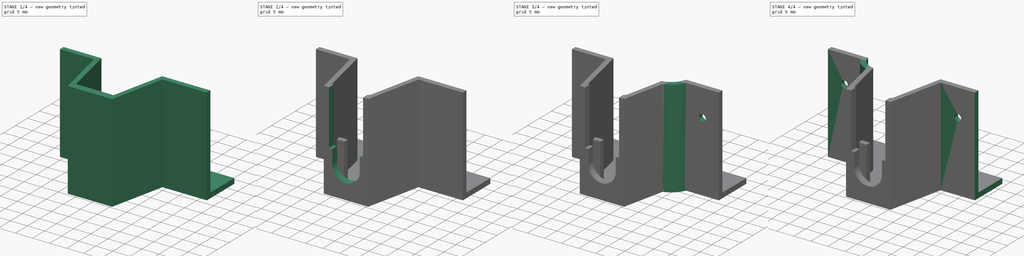
[diagram: build sequence overview — one tinted view per stage of 4, left to right]
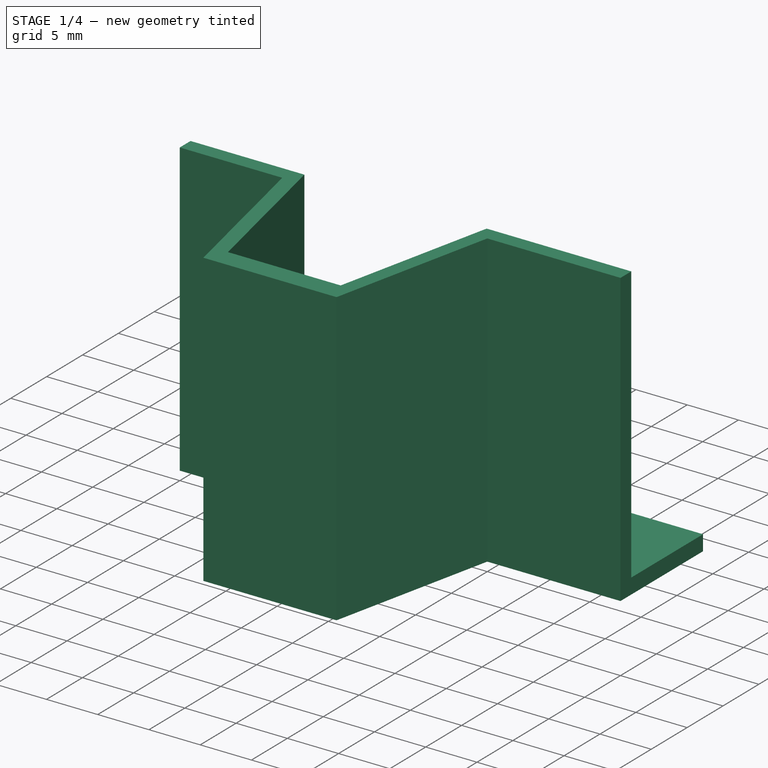
[diagram: stage 1 of 4 — iso view after this stage's code; geometry added in this stage tinted green]
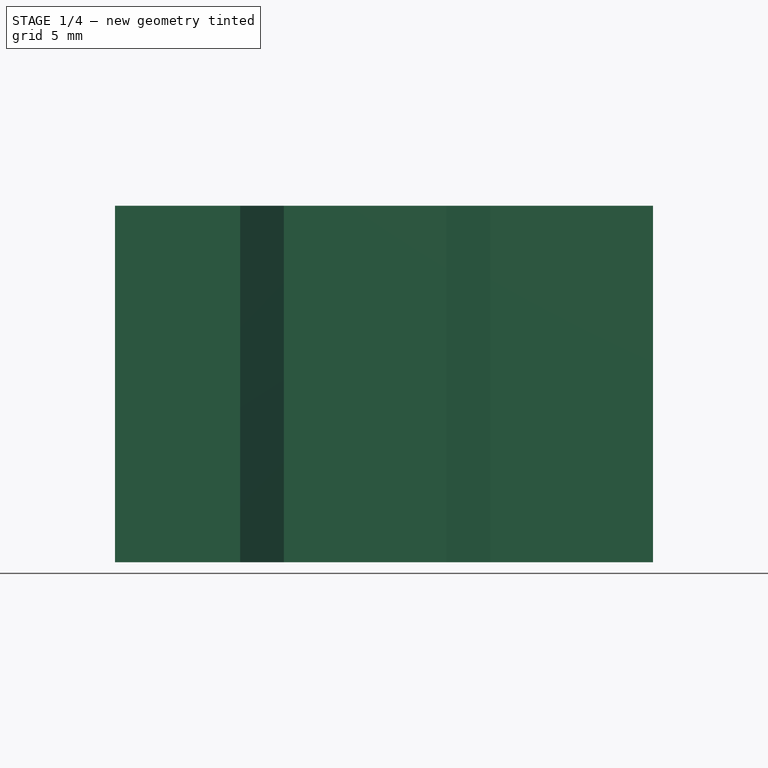
[diagram: stage 1 of 4 — front view after this stage's code; geometry added in this stage tinted green]
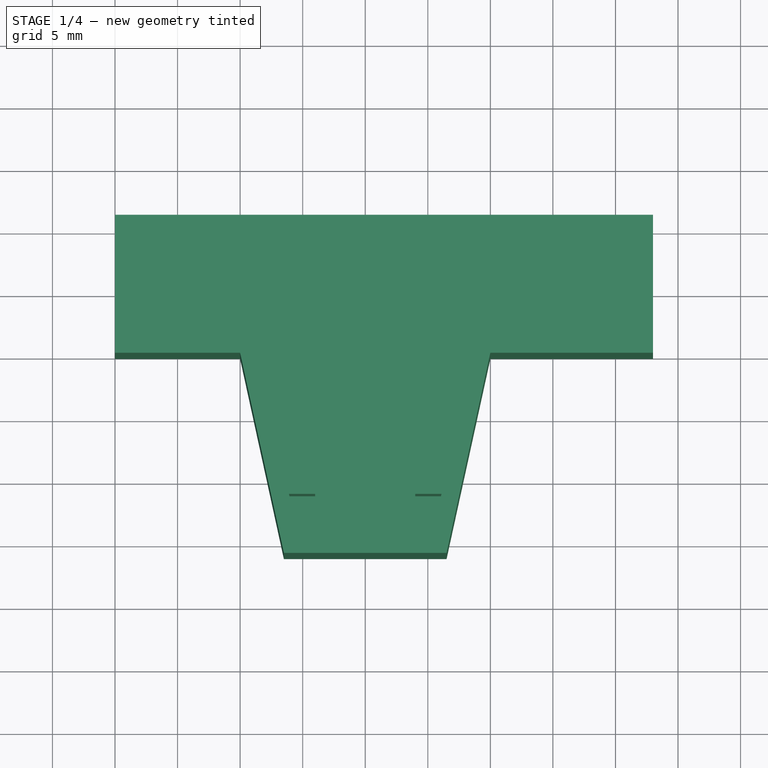
[diagram: stage 1 of 4 — top view after this stage's code; geometry added in this stage tinted green]
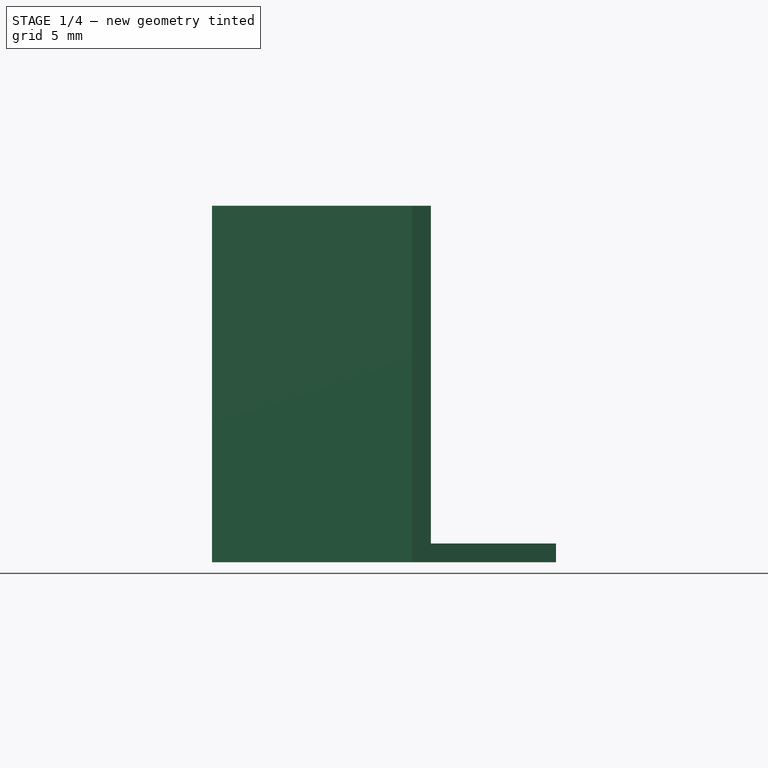
[diagram: stage 1 of 4 — right view after this stage's code; geometry added in this stage tinted green]
FCSTD DOCUMENT  (FreeCAD 0.14R3702 (Git))
Label: rearaxelfittings
License: CC-BY 3.0
LicenseURL: http://creativecommons.org/licenses/by/3.0/
objects: Sketcher::SketchObject×11, PartDesign::Pocket×6, PartDesign::Pad×5, Part::FeaturePython×1, Part::Mirroring×1
note: 35 computed .brp shape members not serialized (recipe doc carries the construction recipe); baked Part::Feature solids carry a one-line shape summary decoded from their .brp

FEATURE [Sketcher::SketchObject] Sketch
  sketch-geometry (8):
    g0: LineSegment StartX=-20 StartY=11.5 StartZ=0 EndX=23 EndY=11.5 EndZ=0
    g1: LineSegment StartX=23 StartY=11.5 StartZ=0 EndX=23 EndY=0 EndZ=0
    g2: LineSegment StartX=23 StartY=0 StartZ=0 EndX=10 EndY=0 EndZ=0
    g3: LineSegment StartX=10 StartY=0 StartZ=0 EndX=6.5 EndY=-16 EndZ=0
    g4: LineSegment StartX=6.5 StartY=-16 StartZ=0 EndX=-6.5 EndY=-16 EndZ=0
    g5: LineSegment StartX=-6.5 StartY=-16 StartZ=0 EndX=-10 EndY=0 EndZ=0
    g6: LineSegment StartX=-10 StartY=0 StartZ=0 EndX=-20 EndY=0 EndZ=0
    g7: LineSegment StartX=-20 StartY=0 StartZ=0 EndX=-20 EndY=11.5 EndZ=0
  constraints (24):
    c: Coincident(g0,g1)
    c: Coincident(g1,g2)
    c: Coincident(g2,g3)
    c: Coincident(g3,g4)
    c: Coincident(g4,g5)
    c: Coincident(g5,g6)
    c: Horizontal(g6)
    c: Horizontal(g0)
    c: Horizontal(g2)
    c: Vertical(g1)
    c: Horizontal(g4)
    c: Coincident(g6,g7)
    c: Coincident(g7,g0)
    c: Vertical(g7)
    c: Distance(g0) = 43
    c: Distance(g7) = 11.5
    c: Equal(g7,g1)
    c: PointOnObject(g5,g-1)
    c: Distance(g6) = 10
    c: Symmetric(g3,g4,g-2)
    c: Distance(g4) = 13
    c: DistanceY(g5,g4) = -16
    c: DistanceX(g-1,g0) = -20
    c: DistanceX(g5,g2) = 20
FEATURE [PartDesign::Pad] Pad
  Length = 1.5
  Length2 = 100
  Sketch = -> Sketch
  Type = 0
FEATURE [Sketcher::SketchObject] Sketch001
  ExternalGeometry = -> [Pad]
  Placement = pos=(0,0,1.5) rot=(0,0,1;0rad)
  Support = -> Pad [Face10]
  sketch-geometry (12):
    g0: LineSegment StartX=-20 StartY=0 StartZ=0 EndX=-20 EndY=1.5 EndZ=0
    g1: LineSegment StartX=-20 StartY=1.5 StartZ=0 EndX=-8.89062 EndY=1.5 EndZ=0
    g2: LineSegment StartX=-8.89062 StartY=1.5 StartZ=0 EndX=-5.5 EndY=-14 EndZ=0
    g3: LineSegment StartX=-5.5 StartY=-14 StartZ=0 EndX=5.5 EndY=-14 EndZ=0
    g4: LineSegment StartX=5.5 StartY=-14 StartZ=0 EndX=8.89062 EndY=1.5 EndZ=0
    g5: LineSegment StartX=8.89062 StartY=1.5 StartZ=0 EndX=23 EndY=1.5 EndZ=0
    g6: LineSegment StartX=23 StartY=1.5 StartZ=0 EndX=23 EndY=0 EndZ=0
    g7: LineSegment StartX=23 StartY=0 StartZ=0 EndX=10 EndY=0 EndZ=0
    g8: LineSegment StartX=10 StartY=0 StartZ=0 EndX=6.5 EndY=-16 EndZ=0
    g9: LineSegment StartX=6.5 StartY=-16 StartZ=0 EndX=-6.5 EndY=-16 EndZ=0
    g10: LineSegment StartX=-6.5 StartY=-16 StartZ=0 EndX=-10 EndY=0 EndZ=0
    g11: LineSegment StartX=-10 StartY=0 StartZ=0 EndX=-20 EndY=0 EndZ=0
  constraints (30):
    c: Coincident(g0,g1)
    c: Coincident(g1,g2)
    c: Coincident(g2,g3)
    c: Coincident(g3,g4)
    c: Coincident(g4,g5)
    c: Coincident(g5,g6)
    c: Coincident(g6,g7)
    c: Coincident(g7,g8)
    c: Coincident(g8,g9)
    c: Coincident(g9,g10)
    c: Coincident(g10,g11)
    c: Coincident(g11,g0)
    c: Coincident(g0,g-3)
    c: PointOnObject(g0,g-3)
    c: Coincident(g6,g-4)
    c: PointOnObject(g5,g-4)
    c: Coincident(g7,g-5)
    c: Coincident(g8,g-5)
    c: Coincident(g9,g-6)
    c: Coincident(g-6,g10)
    c: Horizontal(g3)
    c: Horizontal(g5)
    c: Horizontal(g1)
    c: Distance(g0) = 1.5
    c: Equal(g6,g0)
    c: DistanceY(g9,g2) = 2
    c: Parallel(g8,g4)
    c: Parallel(g10,g2)
    c: Distance(g3) = 11
    c: Symmetric(g2,g3,g-2)
FEATURE [PartDesign::Pad] Pad001
  Length = 27
  Length2 = 100
  Sketch = -> Sketch001
  Type = 0
FEATURE [Sketcher::SketchObject] Sketch002
  ExternalGeometry = -> [Pad001]
  Placement = pos=(0,0,1.5) rot=(0,0,1;0rad)
  Support = -> Pad001 [Face5]
  sketch-geometry (8):
    g0: LineSegment StartX=-6.15625 StartY=-11 StartZ=0 EndX=-4 EndY=-11 EndZ=0
    g1: LineSegment StartX=-4 StartY=-11 StartZ=0 EndX=-4 EndY=-9.5 EndZ=0
    g2: LineSegment StartX=-4 StartY=-9.5 StartZ=0 EndX=-6.48438 EndY=-9.5 EndZ=0
    g3: LineSegment StartX=-6.48438 StartY=-9.5 StartZ=0 EndX=-6.15625 EndY=-11 EndZ=0
    g4: LineSegment StartX=6.48438 StartY=-9.5 StartZ=0 EndX=4 EndY=-9.5 EndZ=0
    g5: LineSegment StartX=4 StartY=-9.5 StartZ=0 EndX=4 EndY=-11 EndZ=0
    g6: LineSegment StartX=4 StartY=-11 StartZ=0 EndX=6.15625 EndY=-11 EndZ=0
    g7: LineSegment StartX=6.15625 StartY=-11 StartZ=0 EndX=6.48438 EndY=-9.5 EndZ=0
  constraints (24):
    c: Coincident(g0,g1)
    c: Coincident(g1,g2)
    c: Coincident(g2,g3)
    c: Coincident(g3,g0)
    c: Coincident(g4,g5)
    c: Coincident(g5,g6)
    c: Coincident(g6,g7)
    c: Coincident(g7,g4)
    c: PointOnObject(g4,g-3)
    c: PointOnObject(g6,g-3)
    c: PointOnObject(g0,g-4)
    c: PointOnObject(g2,g-4)
    c: Vertical(g1)
    c: Vertical(g5)
    c: Horizontal(g4)
    c: Horizontal(g6)
    c: Horizontal(g0)
    c: Horizontal(g2)
    c: Distance(g1) = 1.5
    c: Equal(g5,g1)
    c: Equal(g4,g2)
    c: DistanceY(g4,g1) = 0
    c: DistanceX(g4,g1) = -8
    c: DistanceY(g-5,g0) = 3
FEATURE [PartDesign::Pad] Pad002
  Length = 11
  Length2 = 100
  Sketch = -> Sketch002
  Type = 0
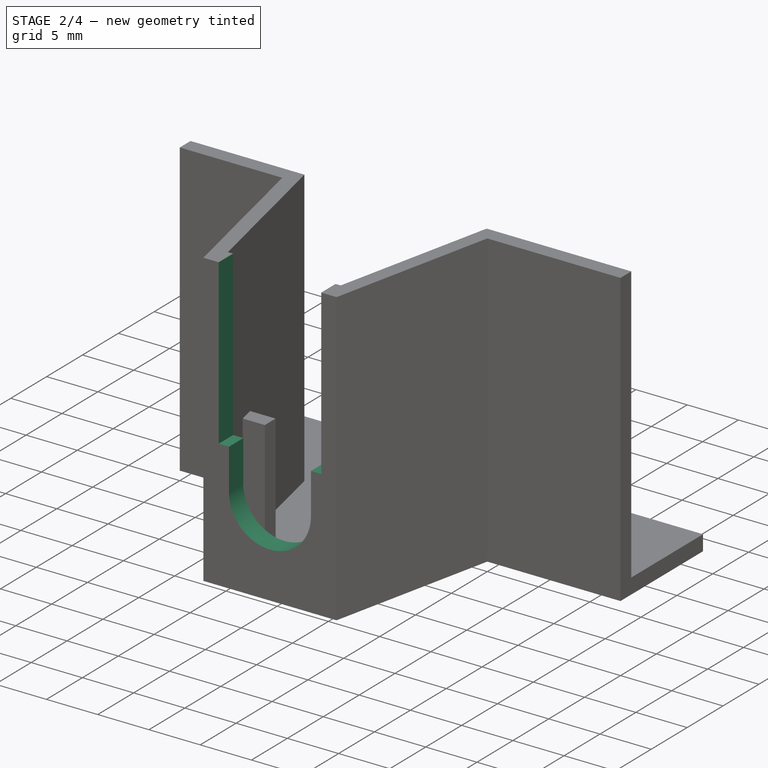
[diagram: stage 2 of 4 — iso view after this stage's code; geometry added in this stage tinted green]
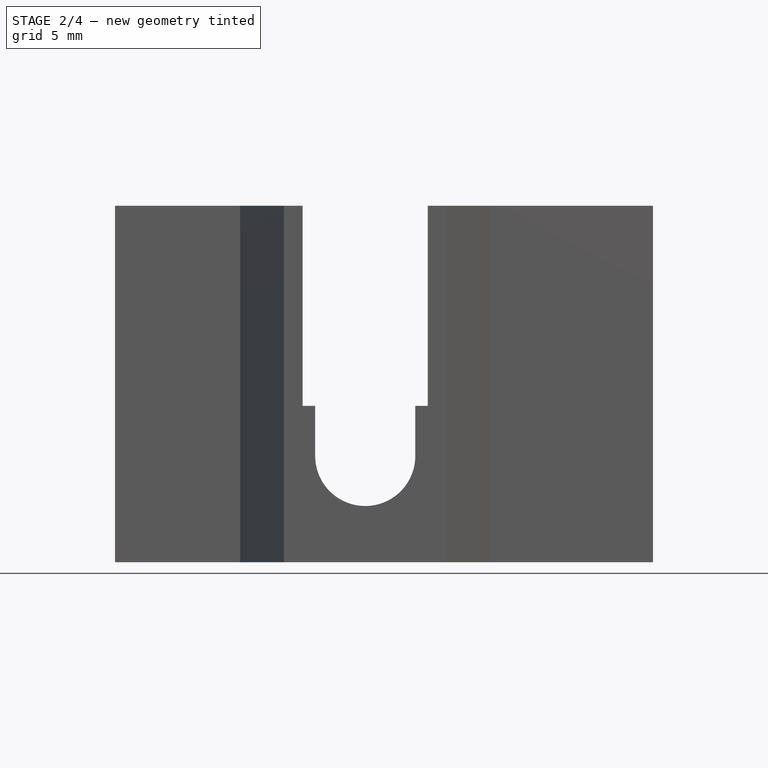
[diagram: stage 2 of 4 — front view after this stage's code; geometry added in this stage tinted green]
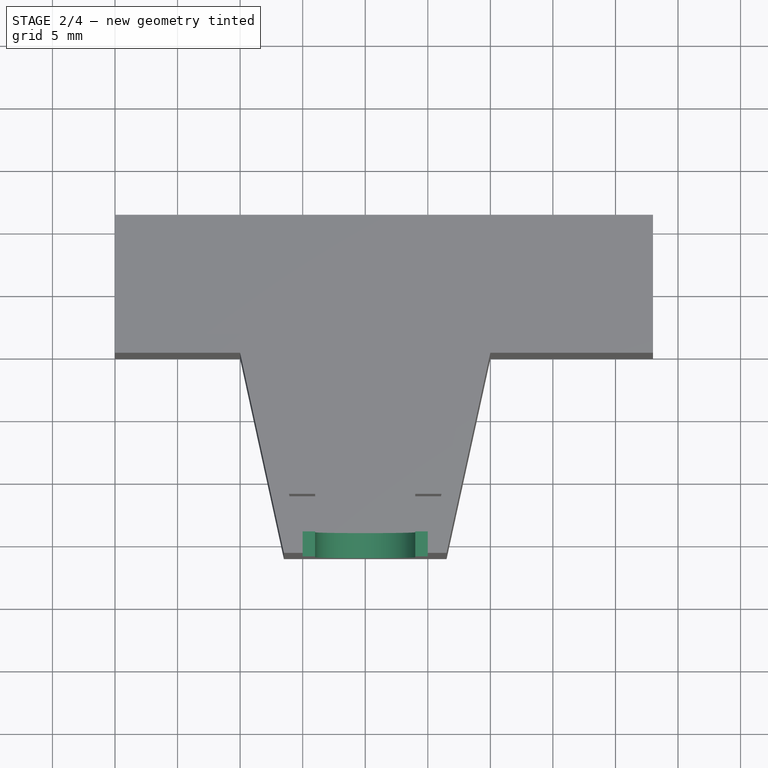
[diagram: stage 2 of 4 — top view after this stage's code; geometry added in this stage tinted green]
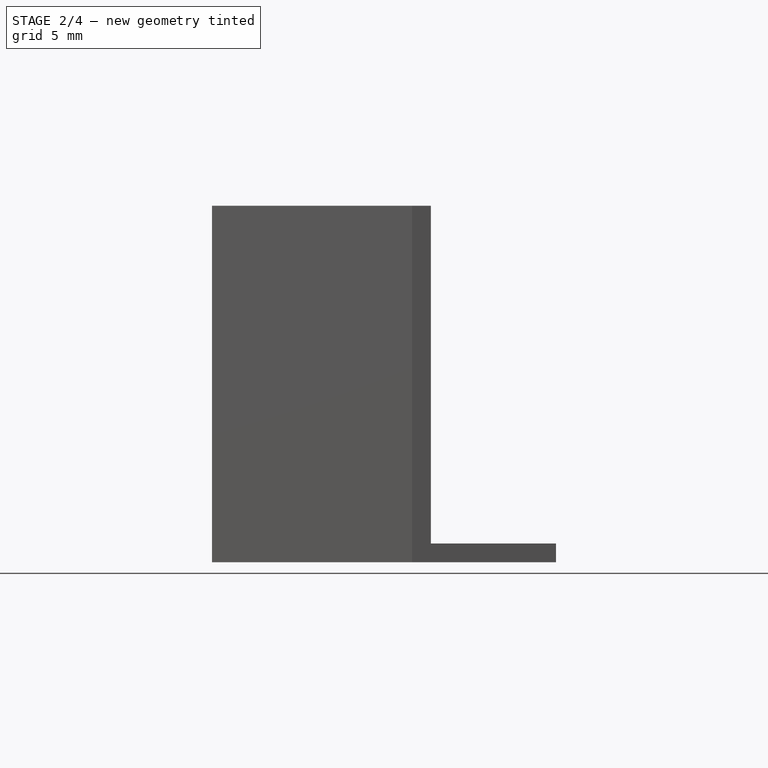
[diagram: stage 2 of 4 — right view after this stage's code; geometry added in this stage tinted green]
FEATURE [Sketcher::SketchObject] Sketch003
  ExternalGeometry = -> [Pad002]
  Placement = pos=(0,0,28.5) rot=(0,0,1;0rad)
  Support = -> Pad002 [Face25]
  sketch-geometry (4):
    g0: LineSegment StartX=-5 StartY=-14 StartZ=0 EndX=5 EndY=-14 EndZ=0
    g1: LineSegment StartX=5 StartY=-14 StartZ=0 EndX=5 EndY=-16 EndZ=0
    g2: LineSegment StartX=5 StartY=-16 StartZ=0 EndX=-5 EndY=-16 EndZ=0
    g3: LineSegment StartX=-5 StartY=-16 StartZ=0 EndX=-5 EndY=-14 EndZ=0
  constraints (12):
    c: Coincident(g0,g1)
    c: Coincident(g1,g2)
    c: Coincident(g2,g3)
    c: Coincident(g3,g0)
    c: Horizontal(g0)
    c: Horizontal(g2)
    c: Vertical(g1)
    c: Vertical(g3)
    c: PointOnObject(g1,g-4)
    c: PointOnObject(g0,g-3)
    c: Symmetric(g0,g0,g-2)
    c: Distance(g2) = 10
FEATURE [PartDesign::Pocket] Pocket
  Length = 16
  Sketch = -> Sketch003
  Type = 0
FEATURE [Sketcher::SketchObject] Sketch004
  Placement = pos=(0,0,12.5) rot=(0,0,1;0rad)
  Support = -> Pocket [Face33]
  sketch-geometry (4):
    g0: LineSegment StartX=-4 StartY=-14 StartZ=0 EndX=4 EndY=-14 EndZ=0
    g1: LineSegment StartX=4 StartY=-14 StartZ=0 EndX=4 EndY=-16 EndZ=0
    g2: LineSegment StartX=4 StartY=-16 StartZ=0 EndX=-4 EndY=-16 EndZ=0
    g3: LineSegment StartX=-4 StartY=-16 StartZ=0 EndX=-4 EndY=-14 EndZ=0
  constraints (10):
    c: Coincident(g0,g1)
    c: Coincident(g1,g2)
    c: Coincident(g2,g3)
    c: Coincident(g3,g0)
    c: Horizontal(g0)
    c: Horizontal(g2)
    c: Vertical(g1)
    c: Vertical(g3)
    c: Symmetric(g0,g0,g-2)
    c: Distance(g0) = 8
FEATURE [PartDesign::Pocket] Pocket001
  Length = 4
  Sketch = -> Sketch004
  Type = 0
FEATURE [Sketcher::SketchObject] Sketch005
  Placement = pos=(0,-16,0) rot=(1,0,0;1.5708rad)
  Support = -> Pocket001 [Face29]
  sketch-geometry (1):
    g0: Circle CenterX=0 CenterY=8.5 CenterZ=0 NormalX=0 NormalY=0 NormalZ=1 Radius=4
  constraints (1):
    c: PointOnObject(g0,g-2)
FEATURE [PartDesign::Pocket] Pocket002
  Length = 2
  Sketch = -> Sketch005
  Type = 0
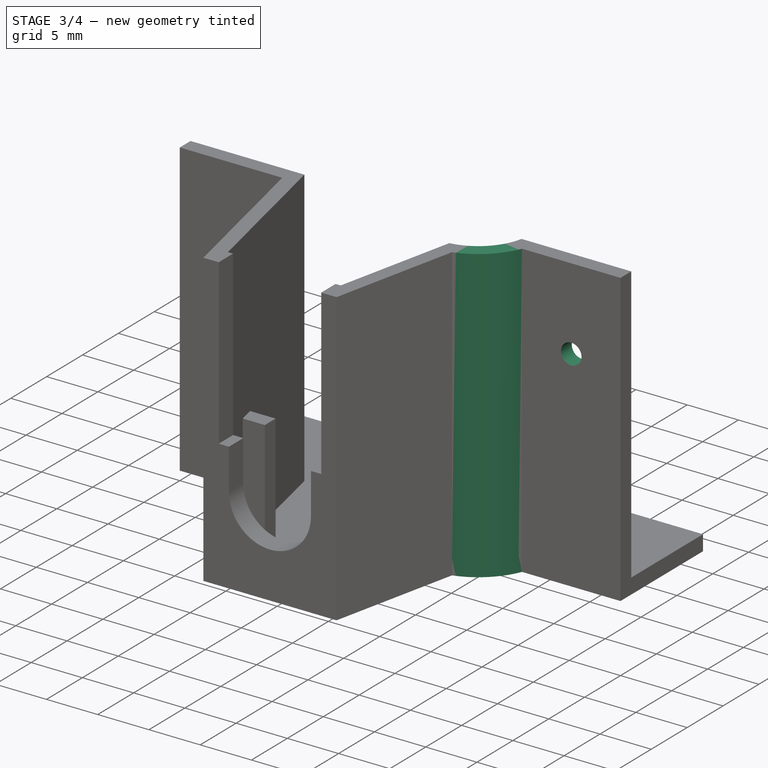
[diagram: stage 3 of 4 — iso view after this stage's code; geometry added in this stage tinted green]
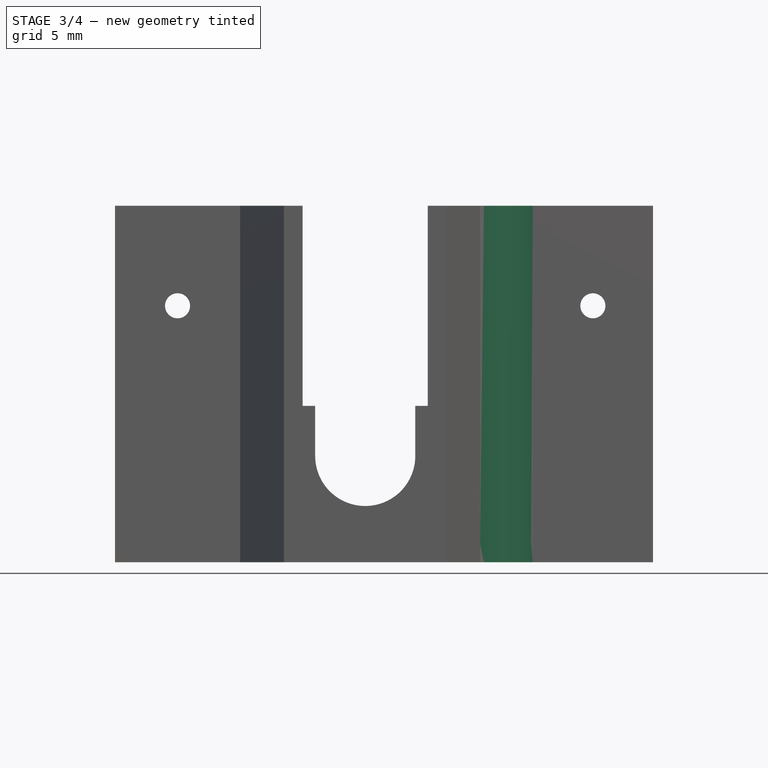
[diagram: stage 3 of 4 — front view after this stage's code; geometry added in this stage tinted green]
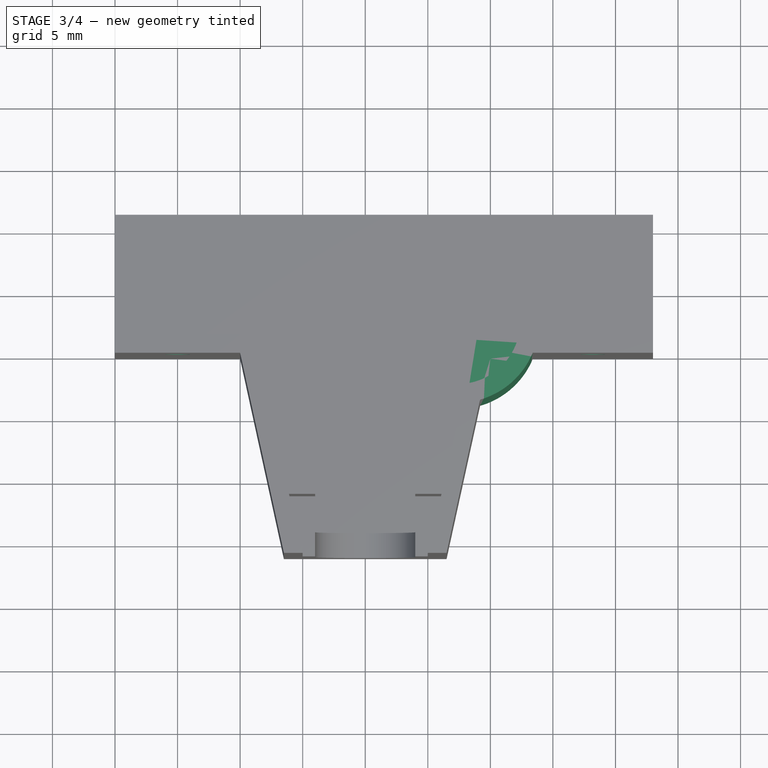
[diagram: stage 3 of 4 — top view after this stage's code; geometry added in this stage tinted green]
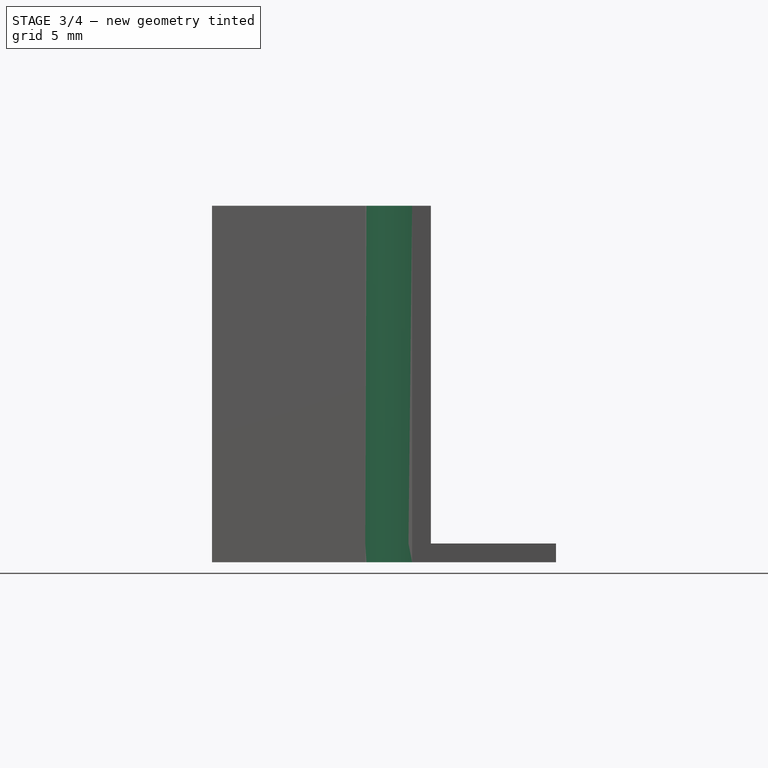
[diagram: stage 3 of 4 — right view after this stage's code; geometry added in this stage tinted green]
FEATURE [Sketcher::SketchObject] Sketch006
  Placement = pos=(0,0,28.5) rot=(0,0,1;0rad)
  Support = -> Pocket002 [Face27]
  sketch-geometry (1):
    g0: Circle CenterX=7.39062 CenterY=2.5 CenterZ=0 NormalX=0 NormalY=0 NormalZ=1 Radius=5
  constraints (1):
    c: Radius(g0) = 5
FEATURE [PartDesign::Pocket] Pocket003
  Length = 27
  Sketch = -> Sketch006
  Type = 0
FEATURE [Sketcher::SketchObject] Sketch007
  Placement = pos=(0,0,1.5) rot=(0,0,1;0rad)
  Support = -> Pocket003 [Face28]
  sketch-geometry (4):
    g0: ArcOfCircle CenterX=7.39062 CenterY=2.5 CenterZ=0 NormalX=0 NormalY=0 NormalZ=1 Radius=6.5 StartAngle=4.99127 EndAngle=5.88839
    g1: ArcOfCircle CenterX=7.39062 CenterY=2.5 CenterZ=0 NormalX=0 NormalY=0 NormalZ=1 Radius=5 StartAngle=5.16153 EndAngle=5.75959
    g2: LineSegment StartX=11.7208 StartY=1e-12 StartZ=0 EndX=13.3906 EndY=0 EndZ=0
    g3: LineSegment StartX=9.5616 StartY=-2.00409 StartZ=0 EndX=9.17993 EndY=-3.74887 EndZ=0
  constraints (6):
    c: Radius(g0) = 6.5
    c: Coincident(g1,g0)
    c: Coincident(g2,g1)
    c: Coincident(g2,g0)
    c: Coincident(g3,g1)
    c: Coincident(g3,g0)
FEATURE [PartDesign::Pad] Pad003
  Length = 27
  Length2 = 100
  Sketch = -> Sketch007
  Type = 0
FEATURE [Sketcher::SketchObject] Sketch008
  ExternalGeometry = -> [Pad003]
  Placement = pos=(0,0,1.5) rot=(1,0,0;3.14159rad)
  Support = -> Pad003 [Face28]
  sketch-geometry (3):
    g0: ArcOfCircle CenterX=7.39062 CenterY=-2.5 CenterZ=0 NormalX=0 NormalY=0 NormalZ=1 Radius=6.5 StartAngle=0.394791 EndAngle=1.29192
    g1: LineSegment StartX=9.17993 StartY=3.74887 StartZ=0 EndX=10 EndY=0 EndZ=0
    g2: LineSegment StartX=10 StartY=0 StartZ=0 EndX=13.3906 EndY=0 EndZ=0
  constraints (7):
    c: Coincident(g0,g-5)
    c: Coincident(g0,g-5)
    c: Coincident(g0,g-5)
    c: Coincident(g1,g0)
    c: Coincident(g2,g0)
    c: Coincident(g-6,g2)
    c: Coincident(g-6,g1)
FEATURE [PartDesign::Pad] Pad004
  Length = 1.5
  Length2 = 100
  Sketch = -> Sketch008
  Type = 0
FEATURE [Sketcher::SketchObject] Sketch009
  ExternalGeometry = -> [Pad004]
  Placement = pos=(0,0,0) rot=(1,0,0;1.5708rad)
  Support = -> Pad004 [Face26]
  sketch-geometry (5):
    g0: LineSegment [constr] StartX=-15 StartY=28.5 StartZ=0 EndX=-15 EndY=0 EndZ=0
    g1: LineSegment [constr] StartX=18.1953 StartY=28.5 StartZ=0 EndX=18.1953 EndY=0 EndZ=0
    g2: LineSegment [constr] StartX=-15 StartY=20.5 StartZ=0 EndX=18.1953 EndY=20.5 EndZ=0
    g3: Circle CenterX=-15 CenterY=20.5 CenterZ=0 NormalX=0 NormalY=0 NormalZ=1 Radius=1
    g4: Circle CenterX=18.1953 CenterY=20.5 CenterZ=0 NormalX=0 NormalY=0 NormalZ=1 Radius=1
  constraints (16):
    c: Vertical(g0)
    c: Vertical(g1)
    c: PointOnObject(g1,g-4)
    c: Symmetric(g-4,g-4,g1)
    c: PointOnObject(g0,g-3)
    c: Symmetric(g-3,g-3,g0)
    c: PointOnObject(g0,g-1)
    c: PointOnObject(g1,g-1)
    c: Horizontal(g2)
    c: PointOnObject(g2,g1)
    c: PointOnObject(g2,g0)
    c: DistanceY(g2,g0) = 8
    c: Coincident(g3,g2)
    c: Radius(g3) = 1
    c: Coincident(g4,g2)
    c: Equal(g4,g3)
FEATURE [PartDesign::Pocket] Pocket004
  Length = 5
  Sketch = -> Sketch009
  Type = 0
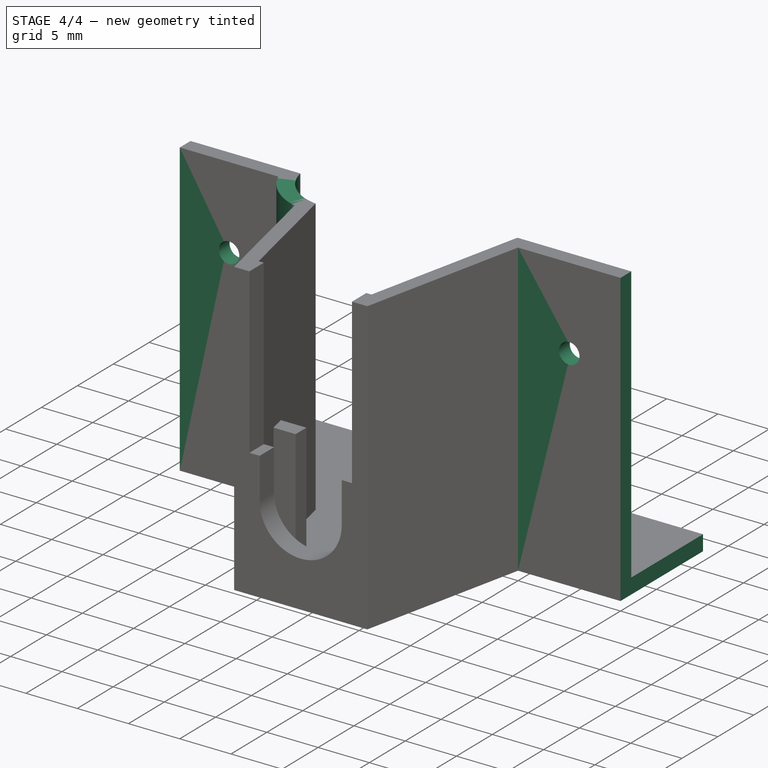
[diagram: stage 4 of 4 — iso view after this stage's code; geometry added in this stage tinted green]
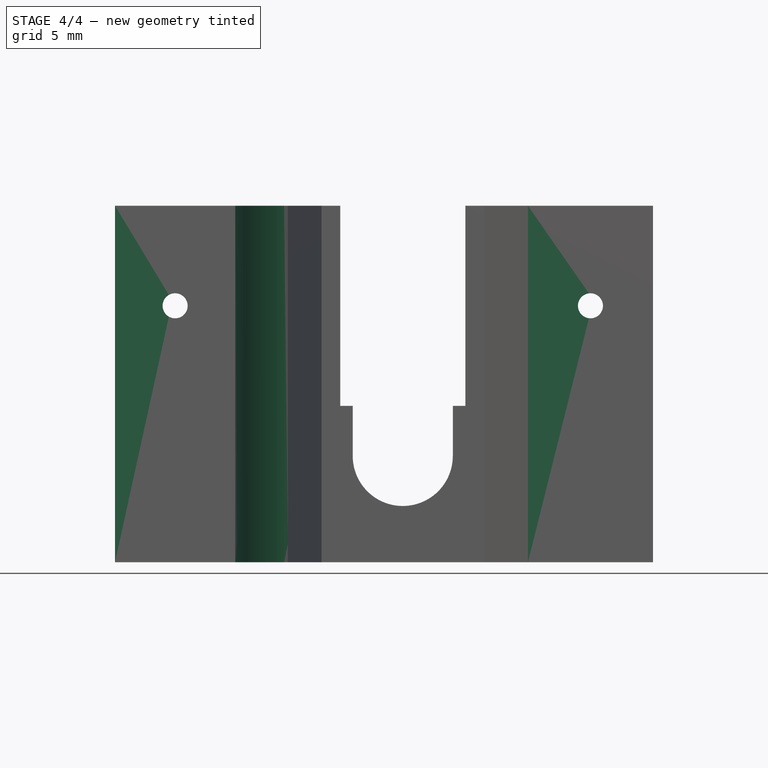
[diagram: stage 4 of 4 — front view after this stage's code; geometry added in this stage tinted green]
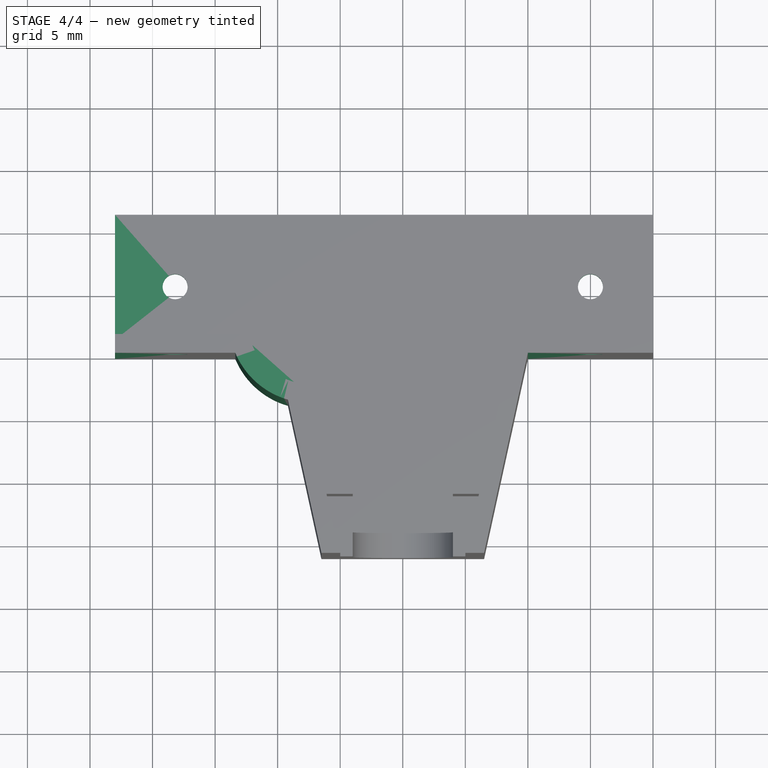
[diagram: stage 4 of 4 — top view after this stage's code; geometry added in this stage tinted green]
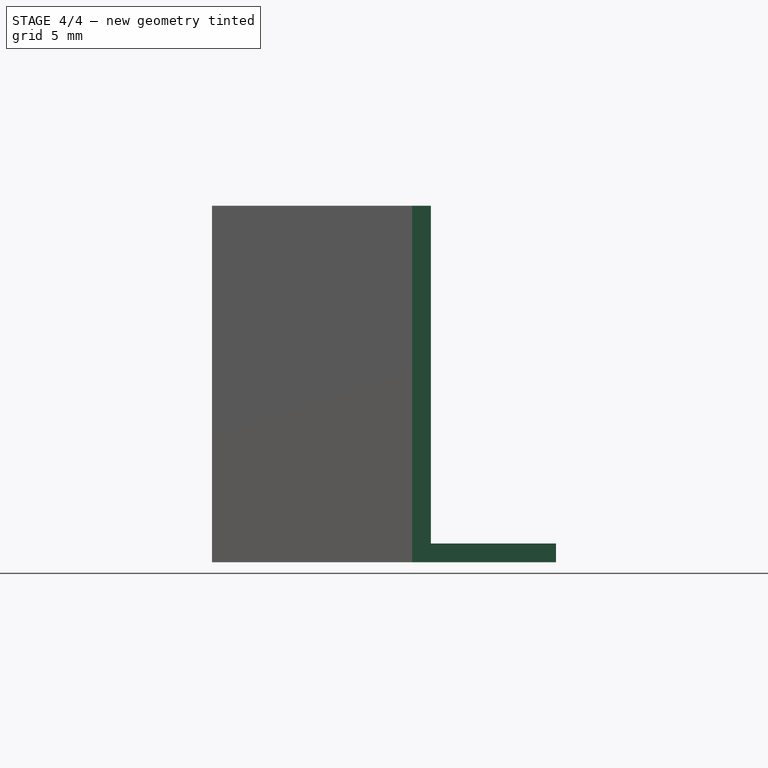
[diagram: stage 4 of 4 — right view after this stage's code; geometry added in this stage tinted green]
FEATURE [Sketcher::SketchObject] Sketch010
  ExternalGeometry = -> [Pocket004]
  Placement = pos=(0,0,0) rot=(1,0,0;3.14159rad)
  Support = -> Pocket004 [Face4]
  sketch-geometry (5):
    g0: LineSegment [constr] StartX=-15 StartY=0 StartZ=0 EndX=-15 EndY=-11.5 EndZ=0
    g1: LineSegment [constr] StartX=18.1953 StartY=0 StartZ=0 EndX=18.1953 EndY=-11.5 EndZ=0
    g2: LineSegment [constr] StartX=-20 StartY=-5.75 StartZ=0 EndX=23 EndY=-5.75 EndZ=0
    g3: Circle CenterX=-15 CenterY=-5.75 CenterZ=0 NormalX=0 NormalY=0 NormalZ=1 Radius=1
    g4: Circle CenterX=18.1953 CenterY=-5.75 CenterZ=0 NormalX=0 NormalY=0 NormalZ=1 Radius=1
  constraints (18):
    c: Horizontal(g2)
    c: Vertical(g0)
    c: Vertical(g1)
    c: PointOnObject(g0,g-3)
    c: PointOnObject(g1,g-4)
    c: Symmetric(g-4,g-4,g1)
    c: Symmetric(g-3,g-5,g0)
    c: PointOnObject(g2,g-5)
    c: Symmetric(g-5,g-5,g2)
    c: PointOnObject(g1,g-7)
    c: PointOnObject(g0,g-7)
    c: PointOnObject(g2,g-6)
    c: PointOnObject(g3,g0)
    c: PointOnObject(g3,g2)
    c: PointOnObject(g4,g1)
    c: PointOnObject(g4,g2)
    c: Radius(g3) = 1
    c: Equal(g3,g4)
FEATURE [PartDesign::Pocket] Pocket005
  Length = 5
  Sketch = -> Sketch010
  Type = 0
FEATURE [Part::FeaturePython] refine  label="rearaxelfittingright"  # WARN: FeaturePython — macro-defined, semantics opaque (R4)
  Base = -> Pocket005
FEATURE [Part::Mirroring] Part__Mirroring  label="rearaxelfittingleft"
  Base = (0,0,0)
  Normal = (1,0,0)
  Source = -> refine
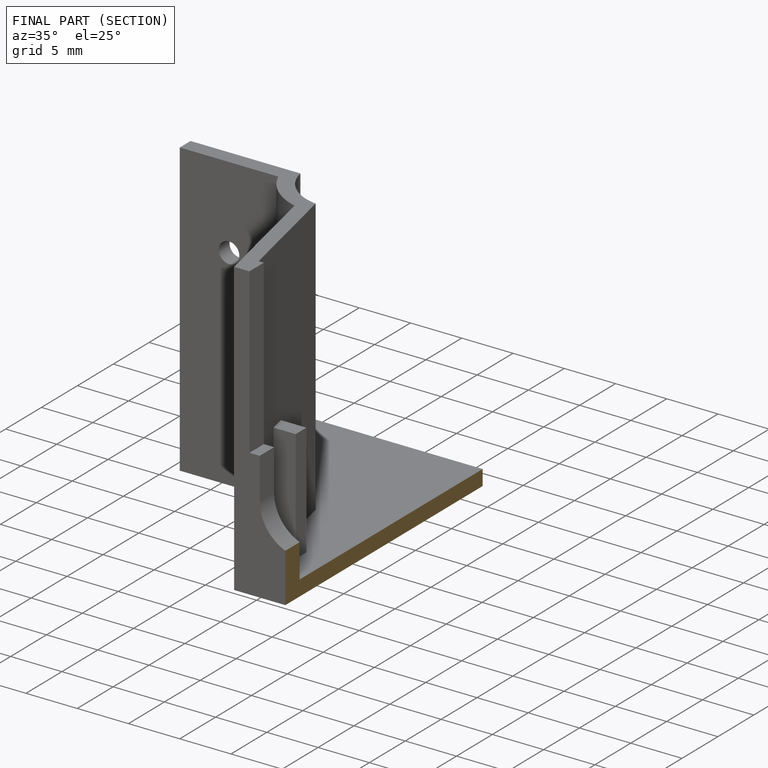
[diagram: finished part — half-section view (interior)]
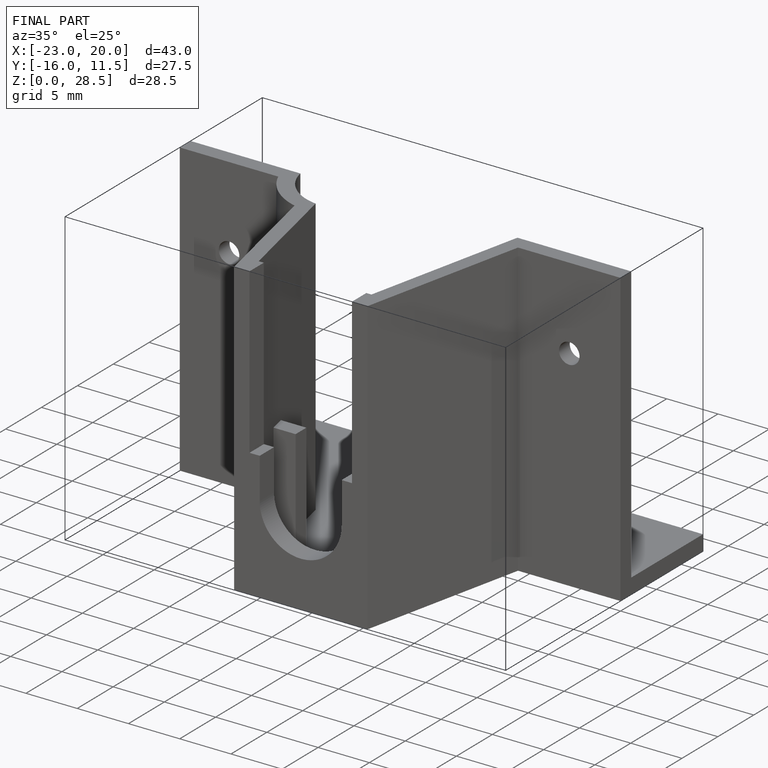
[diagram: finished part — iso view with bounding-box wireframe]
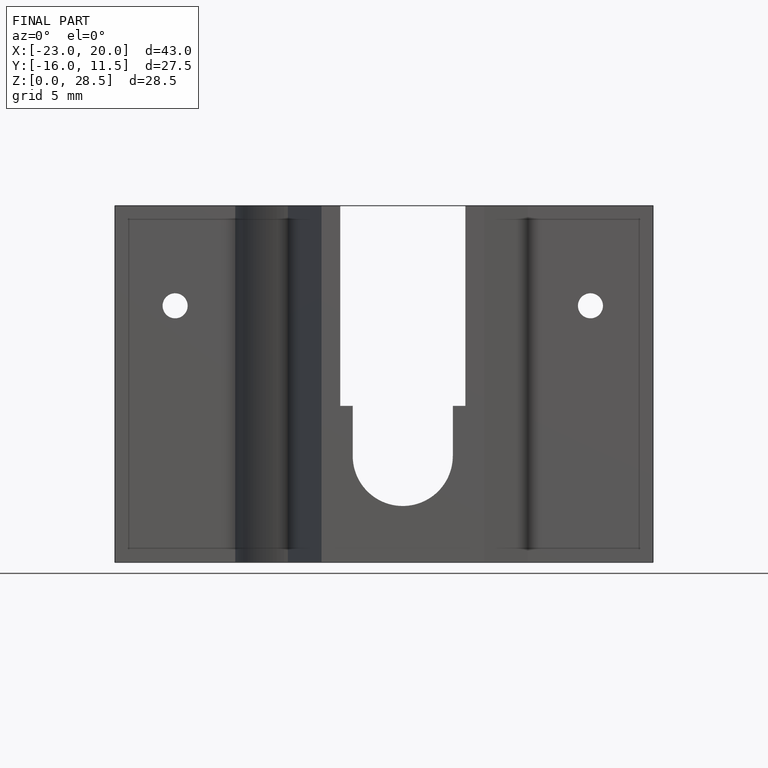
[diagram: finished part — front view with bounding-box wireframe]
